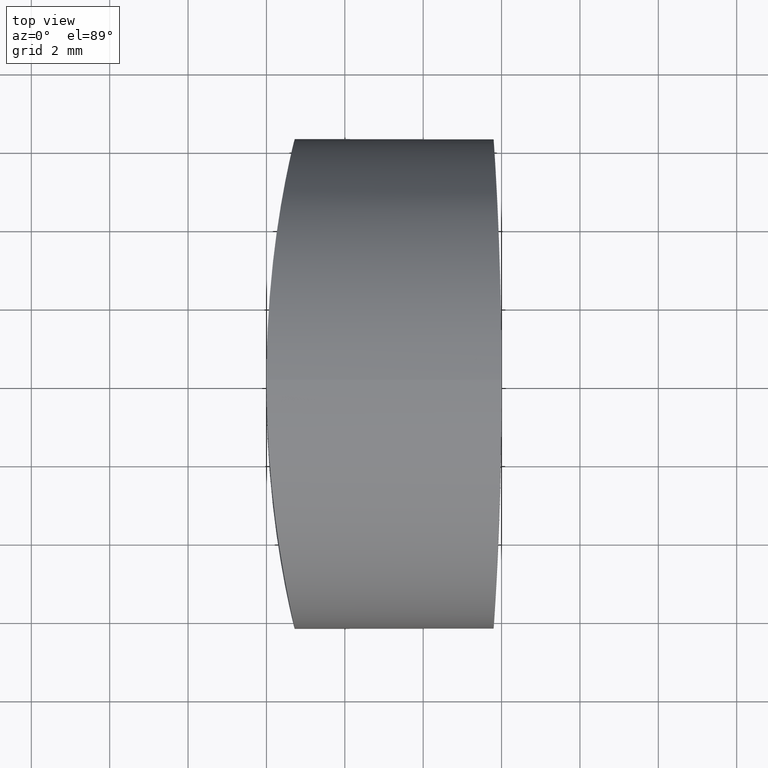
[diagram: clean part render]
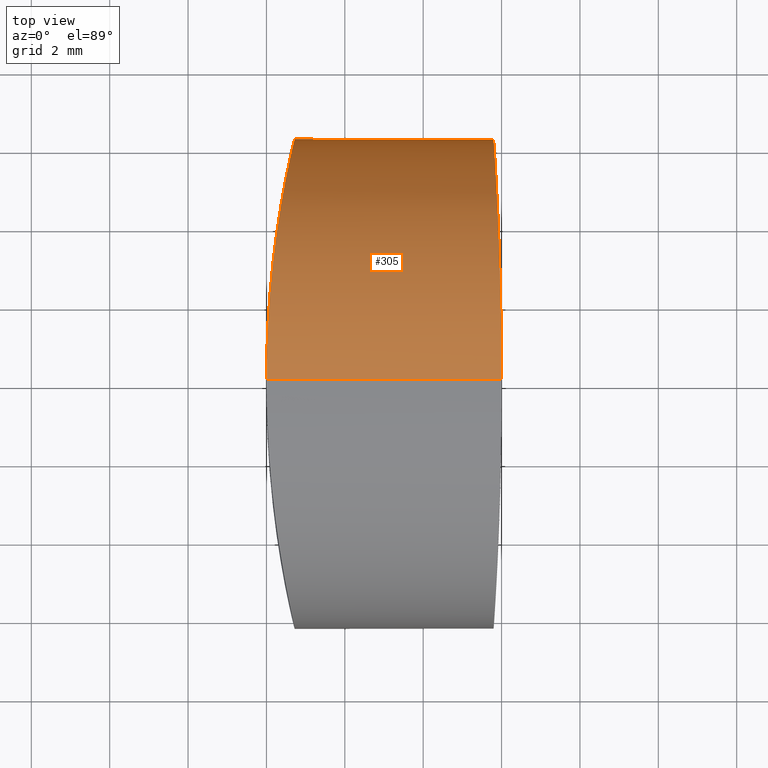
[diagram: same view with one face highlighted and labeled with its STEP entity id]
A machine part, top view. The second image highlights one B-rep face of the part: STEP entity #305.
In plain terms, the highlighted cylindrical surface (partial cylindrical patch) has radius 6.25 mm, axis along (1, -0, -0).
Its self-contained STEP definition (entity closure, byte-faithful):
#1 = CARTESIAN_POINT ( 'NONE',  ( 3.970701140584363742, 2.393867264434657471, 0.6318106251234297810 ) ) ;
#14 = CARTESIAN_POINT ( 'NONE',  ( -1.999999999999988232, -2.025794804607558316E-23, 0.1659204607558764366 ) ) ;
#17 = CARTESIAN_POINT ( 'NONE',  ( -1.859925259449356938, 2.772965657853352806, 0.8110136745057094920 ) ) ;
#22 = CARTESIAN_POINT ( 'NONE',  ( 3.997319152655782304, 0.8217832976080150509, 12.62511903696444904 ) ) ;
#24 = CARTESIAN_POINT ( 'NONE',  ( 3.847259097544624584, 5.414084262280948856, 9.545173002638325244 ) ) ;
#25 = VECTOR ( 'NONE', #74, 1000.000000000000000 ) ;
#26 = CARTESIAN_POINT ( 'NONE',  ( 3.871542897612740841, 4.969767043136539719, 10.22769198370416532 ) ) ;
#27 = CARTESIAN_POINT ( 'NONE',  ( 3.949354187978777020, 3.123140200589369808, 0.9983280171350860099 ) ) ;
#28 = CARTESIAN_POINT ( 'NONE',  ( 3.836136953617952816, 5.607516269999798908, 9.183643559558131386 ) ) ;
#30 = CARTESIAN_POINT ( 'NONE',  ( 3.911645654583979947, 4.127901318534466846, 1.705397611034966898 ) ) ;
#31 = VERTEX_POINT ( 'NONE', #247 ) ;
#45 = EDGE_CURVE ( 'NONE', #136, #145, #273, .T. ) ;
#47 = CARTESIAN_POINT ( 'NONE',  ( 4.000000000000031086, 7.654041361186688762E-16, 12.66592046075587596 ) ) ;
#49 = CARTESIAN_POINT ( 'NONE',  ( -1.862258568810049253, 2.769757839151302026, 12.03343208499295258 ) ) ;
#51 = CARTESIAN_POINT ( 'NONE',  ( 3.806684533421547556, 6.089399972585498588, 4.993538616398564223 ) ) ;
#52 = CARTESIAN_POINT ( 'NONE',  ( -1.277574694169997915, 6.250360675676211564, 6.007157946108796054 ) ) ;
#71 = CARTESIAN_POINT ( 'NONE',  ( -1.546775744305171729, 4.968328230239867693, 2.602332432678148955 ) ) ;
#72 = CARTESIAN_POINT ( 'NONE',  ( -1.287350413805169902, 6.209036227751648873, 5.592257759167049258 ) ) ;
#73 = CARTESIAN_POINT ( 'NONE',  ( -1.315050644076650066, 6.088329676846095495, 7.842938738167732460 ) ) ;
#74 = DIRECTION ( 'NONE',  ( 1.000000000000000000, -0.000000000000000000, -0.000000000000000000 ) ) ;
#75 = CARTESIAN_POINT ( 'NONE',  ( 4.000000000000034639, 0.4076888881608913828, 12.66592046075587419 ) ) ;
#76 = EDGE_CURVE ( 'NONE', #31, #79, #317, .T. ) ;
#77 = CARTESIAN_POINT ( 'NONE',  ( 3.871597177664503064, 4.968754873974420505, 2.602686793415346145 ) ) ;
#78 = CARTESIAN_POINT ( 'NONE',  ( -1.926573552974540915, 2.014189616208664990, 12.33601367040646224 ) ) ;
#79 = VERTEX_POINT ( 'NONE', #208 ) ;
#80 = CARTESIAN_POINT ( 'NONE',  ( 3.835785147991723765, 5.614895644616908044, 3.640456923618365259 ) ) ;
#81 = CARTESIAN_POINT ( 'NONE',  ( 3.817280280653655655, 5.920504197400468627, 4.402907011145934746 ) ) ;
#87 = DIRECTION ( 'NONE',  ( 1.000000000000000000, -0.000000000000000000, -0.000000000000000000 ) ) ;
#91 = EDGE_CURVE ( 'NONE', #136, #79, #204, .T. ) ;
#92 = CARTESIAN_POINT ( 'NONE',  ( -1.928290907776921692, 2.017260835010109332, 0.4861948975080956359 ) ) ;
#94 = CARTESIAN_POINT ( 'NONE',  ( -1.800127624215231981, 3.307872807059071274, 1.109156230123880427 ) ) ;
#98 = CARTESIAN_POINT ( 'NONE',  ( 3.821591588841473985, 5.850536504395219772, 4.207830710039567101 ) ) ;
#100 = CARTESIAN_POINT ( 'NONE',  ( -1.368676080480692558, 5.848457640996162610, 8.629498040734659980 ) ) ;
#101 = CARTESIAN_POINT ( 'NONE',  ( 3.796314688086376510, 6.250287374589430733, 6.824480164821547845 ) ) ;
#104 = CARTESIAN_POINT ( 'NONE',  ( 3.809242420778939930, 6.049419129845787779, 8.038811753146719141 ) ) ;
#108 = CARTESIAN_POINT ( 'NONE',  ( 3.979150040975546698, 2.010237166812398169, 0.4944972460249934532 ) ) ;
#114 = CARTESIAN_POINT ( 'NONE',  ( -6.500000000000000000, 0.000000000000000000, 6.415920460755876853 ) ) ;
#120 = CARTESIAN_POINT ( 'NONE',  ( -1.954594591572518913, 1.627095634744305741, 0.3675766573735297915 ) ) ;
#124 = VECTOR ( 'NONE', #218, 1000.000000000000000 ) ;
#128 = CARTESIAN_POINT ( 'NONE',  ( -1.594925943440980376, 4.703060275166605742, 10.55218012694327179 ) ) ;
#130 = CARTESIAN_POINT ( 'NONE',  ( 3.799022910531853370, 6.209155694579083118, 7.237889752115528985 ) ) ;
#132 = CARTESIAN_POINT ( 'NONE',  ( -6.500000000000000000, 0.000000000000000000, 0.1659204607558761313 ) ) ;
#133 = CARTESIAN_POINT ( 'NONE',  ( 3.830892640603730026, 5.696155008867870073, 8.996287822504227094 ) ) ;
#134 = CARTESIAN_POINT ( 'NONE',  ( -1.688785723069319733, 4.128255163304336506, 11.12600849439494510 ) ) ;
#135 = EDGE_CURVE ( 'NONE', #145, #31, #155, .T. ) ;
#136 = VERTEX_POINT ( 'NONE', #280 ) ;
#138 = CARTESIAN_POINT ( 'NONE',  ( 3.943395001072908634, 3.300634010918813033, 1.104561893720724663 ) ) ;
#145 = VERTEX_POINT ( 'NONE', #165 ) ;
#150 = CARTESIAN_POINT ( 'NONE',  ( -1.593582395901175897, 4.710914236144385647, 2.288228895437081079 ) ) ;
#154 = CARTESIAN_POINT ( 'NONE',  ( -1.952641877828973582, 1.622209684167594812, 12.45520014972431255 ) ) ;
#155 = LINE ( 'NONE', #201, #124 ) ;
#156 = CARTESIAN_POINT ( 'NONE',  ( -1.277744816031712194, 6.249634522894289113, 6.835639056565093519 ) ) ;
#157 = CARTESIAN_POINT ( 'NONE',  ( 3.809835969932800825, 6.039776630583848060, 4.795521944217352228 ) ) ;
#159 = CARTESIAN_POINT ( 'NONE',  ( -1.735384002657419877, 3.814376131947823545, 11.38399394522757468 ) ) ;
#160 = ORIENTED_EDGE ( 'NONE', *, *, #76, .T. ) ;
#165 = CARTESIAN_POINT ( 'NONE',  ( -1.999999999999989120, 2.025715918517036215E-23, 12.66592046075587596 ) ) ;
#168 = CARTESIAN_POINT ( 'NONE',  ( -1.735342481329319231, 3.814321636421825534, 1.448171787291351764 ) ) ;
#174 = CARTESIAN_POINT ( 'NONE',  ( -1.547170903636142736, 4.966227613300333132, 10.23239650385385424 ) ) ;
#175 = CARTESIAN_POINT ( 'NONE',  ( -1.353199154503197166, 5.918623497734517791, 8.434493327166119769 ) ) ;
#176 = CARTESIAN_POINT ( 'NONE',  ( 3.960419032364648206, 2.762345549659964483, 0.8057725427426374321 ) ) ;
#177 = CARTESIAN_POINT ( 'NONE',  ( 3.924879581463222245, 3.812110609171539100, 11.38543511681904619 ) ) ;
#178 = CARTESIAN_POINT ( 'NONE',  ( -1.999999999999989120, 2.025715918517036215E-23, 12.66592046075587596 ) ) ;
#180 = CARTESIAN_POINT ( 'NONE',  ( 4.000000000000032863, 1.133498457493967443E-22, 0.1659204607558763811 ) ) ;
#181 = ORIENTED_EDGE ( 'NONE', *, *, #45, .T. ) ;
#184 = ORIENTED_EDGE ( 'NONE', *, *, #91, .F. ) ;
#197 = CARTESIAN_POINT ( 'NONE',  ( -1.820847519368841816, 3.133420498061239012, 1.004266868320667028 ) ) ;
#200 = CARTESIAN_POINT ( 'NONE',  ( 3.979642841157838173, 2.012801628194695436, 12.34709159796433120 ) ) ;
#201 = CARTESIAN_POINT ( 'NONE',  ( -6.500000000000000000, 7.654042494670955634E-16, 12.66592046075587596 ) ) ;
#202 = CARTESIAN_POINT ( 'NONE',  ( 3.943262140410059846, 3.304410289334033024, 11.72485759007748740 ) ) ;
#204 = LINE ( 'NONE', #132, #25 ) ;
#205 = CARTESIAN_POINT ( 'NONE',  ( -1.911696865473067941, 2.206080125144447290, 12.26716685066609536 ) ) ;
#206 = CARTESIAN_POINT ( 'NONE',  ( -1.418644193847633961, 5.616579042898385055, 3.644018781763239456 ) ) ;
#208 = CARTESIAN_POINT ( 'NONE',  ( 4.000000000000032863, 1.133498457493967443E-22, 0.1659204607558763811 ) ) ;
#209 = CARTESIAN_POINT ( 'NONE',  ( -1.419513095440953832, 5.612452302191519138, 9.196281782611283262 ) ) ;
#210 = EDGE_LOOP ( 'NONE', ( #181, #282, #160, #184 ) ) ;
#211 = CARTESIAN_POINT ( 'NONE',  ( 3.989734169128582586, 1.418315561059886765, 0.3255049212500812916 ) ) ;
#216 = DIRECTION ( 'NONE',  ( 0.000000000000000000, 0.000000000000000000, -1.000000000000000000 ) ) ;
#217 = FACE_OUTER_BOUND ( 'NONE', #210, .T. ) ;
#218 = DIRECTION ( 'NONE',  ( 1.000000000000000000, -0.000000000000000000, -0.000000000000000000 ) ) ;
#221 = CARTESIAN_POINT ( 'NONE',  ( -1.999999999999988676, 0.4090758884382472149, 0.1659204607558747990 ) ) ;
#231 = CARTESIAN_POINT ( 'NONE',  ( -1.963877432318550387, 1.420924309365094507, 12.50573313448479595 ) ) ;
#232 = CARTESIAN_POINT ( 'NONE',  ( -1.822657548445254516, 3.131364917687820881, 11.84047326954647694 ) ) ;
#233 = CARTESIAN_POINT ( 'NONE',  ( 3.885084532779451205, 4.704668490741449993, 2.281348027537908330 ) ) ;
#234 = CARTESIAN_POINT ( 'NONE',  ( 3.816722461102150188, 5.931303527217370863, 8.428393788411538523 ) ) ;
#235 = CARTESIAN_POINT ( 'NONE',  ( 3.986547992926378292, 1.618919533692513069, 0.3757709677204121301 ) ) ;
#236 = CARTESIAN_POINT ( 'NONE',  ( -1.459544857805015194, 5.420174023815212294, 9.554490142347527026 ) ) ;
#243 = CYLINDRICAL_SURFACE ( 'NONE', #303, 6.250000000000000000 ) ;
#247 = CARTESIAN_POINT ( 'NONE',  ( 4.000000000000031086, 7.654041361186688762E-16, 12.66592046075587596 ) ) ;
#256 = CARTESIAN_POINT ( 'NONE',  ( 3.911666462844916481, 4.127652124117149768, 11.12709587291777424 ) ) ;
#257 = CARTESIAN_POINT ( 'NONE',  ( 3.853150459492664215, 5.309084431220586708, 9.720091181787495316 ) ) ;
#258 = CARTESIAN_POINT ( 'NONE',  ( -1.999999999999988676, 0.4090695231403943533, 12.66592046075587419 ) ) ;
#261 = CARTESIAN_POINT ( 'NONE',  ( 3.924847980163156613, 3.813195091562492589, 1.446926397538411013 ) ) ;
#262 = CARTESIAN_POINT ( 'NONE',  ( 3.960269817474967535, 2.767558549271831314, 12.02352447444030759 ) ) ;
#273 = B_SPLINE_CURVE_WITH_KNOTS ( 'NONE', 3,
 ( #14, #221, #294, #120, #92, #325, #17, #197, #94, #168, #299, #150, #71, #276, #206, #308, #336, #72, #52, #156, #301, #73, #277, #175, #100, #209, #236, #174, #128, #134, #159, #232, #49, #205, #78, #154, #231, #337, #258, #178 ),
 .UNSPECIFIED., .F., .F.,
 ( 4, 2, 2, 2, 2, 2, 2, 2, 2, 2, 2, 2, 2, 2, 2, 2, 2, 2, 2, 4 ),
 ( 0.02940407889636107233, 0.03062902388804982987, 0.03185396887973859087, 0.03246644137558296617, 0.03307891387142734840, 0.03430385886311610594, 0.03552880385480487041, 0.03675374884649362794, 0.03797869383818239242, 0.03920363882987114995, 0.04042858382155990749, 0.04104105631740428278, 0.04165352881324866502, 0.04287847380493740868, 0.04410341879662616621, 0.04532836378831491680, 0.04655330878000366740, 0.04716578127584804270, 0.04777825377169242493, 0.04900319876338117553 ),
 .UNSPECIFIED. ) ;
#276 = CARTESIAN_POINT ( 'NONE',  ( -1.459481361792043907, 5.420449187366095600, 3.278011976035771546 ) ) ;
#277 = CARTESIAN_POINT ( 'NONE',  ( -1.326407860301003439, 6.038451125353795135, 8.041296888435431001 ) ) ;
#278 = CARTESIAN_POINT ( 'NONE',  ( 3.987112049802486791, 1.623247554669996706, 12.46526274924277544 ) ) ;
#279 = CARTESIAN_POINT ( 'NONE',  ( 3.799039017625655212, 6.208904617575132789, 5.592602782711422194 ) ) ;
#280 = CARTESIAN_POINT ( 'NONE',  ( -1.999999999999988232, -2.025794804607558316E-23, 0.1659204607558764366 ) ) ;
#281 = CARTESIAN_POINT ( 'NONE',  ( 3.965504197679731835, 2.580272594666831676, 12.11211293472836559 ) ) ;
#282 = ORIENTED_EDGE ( 'NONE', *, *, #135, .T. ) ;
#294 = CARTESIAN_POINT ( 'NONE',  ( -1.990530616496565930, 0.8246926825531656347, 0.2070731484231863595 ) ) ;
#299 = CARTESIAN_POINT ( 'NONE',  ( -1.688332098000617121, 4.131400204899446926, 1.708258307874834125 ) ) ;
#301 = CARTESIAN_POINT ( 'NONE',  ( -1.287473228372622902, 6.208504599585721095, 7.242678169551171941 ) ) ;
#303 = AXIS2_PLACEMENT_3D ( 'NONE', #114, #87, #216 ) ;
#305 = ADVANCED_FACE ( 'NONE', ( #217 ), #243, .T. ) ;
#306 = CARTESIAN_POINT ( 'NONE',  ( 4.000000000000034639, 0.4076884619637705098, 0.1659204607558753819 ) ) ;
#307 = CARTESIAN_POINT ( 'NONE',  ( 3.796352385796852857, 6.249709566056590226, 5.998615252689856625 ) ) ;
#308 = CARTESIAN_POINT ( 'NONE',  ( -1.351173038985984398, 5.929618670669481340, 4.398738891443029431 ) ) ;
#310 = CARTESIAN_POINT ( 'NONE',  ( 3.884780156405191587, 4.711073136301743958, 10.54368931648213703 ) ) ;
#313 = CARTESIAN_POINT ( 'NONE',  ( 3.997402908488032924, 0.8132492780566611401, 0.2054255118702897898 ) ) ;
#317 = B_SPLINE_CURVE_WITH_KNOTS ( 'NONE', 3,
 ( #47, #75, #22, #278, #200, #281, #262, #334, #202, #177, #256, #310, #26, #257, #24, #28, #133, #234, #104, #130, #101, #307, #279, #51, #157, #81, #98, #80, #339, #77, #233, #30, #261, #138, #27, #176, #1, #108, #235, #211, #313, #306, #180 ),
 .UNSPECIFIED., .F., .F.,
 ( 4, 2, 2, 2, 2, 2, 2, 2, 2, 2, 2, 2, 2, 2, 2, 2, 2, 2, 1, 2, 2, 4 ),
 ( 0.009774992116915404150, 0.01099632855134807970, 0.01221766498578075524, 0.01282833320299709215, 0.01343900142021343079, 0.01466033785464610634, 0.01588167428907878362, 0.01649234250629512399, 0.01710301072351146437, 0.01832434715794415206, 0.01954568359237683628, 0.02076702002680951703, 0.02137768824402586088, 0.02198835646124220472, 0.02320969289567489241, 0.02443102933010757316, 0.02565236576454026085, 0.02626303398175660123, 0.02687370219897294507, 0.02748437041618928545, 0.02809503863340562929, 0.02931637506783831004 ),
 .UNSPECIFIED. ) ;
#325 = CARTESIAN_POINT ( 'NONE',  ( -1.878366243185419560, 2.585912103451887489, 0.7222678346997325471 ) ) ;
#334 = CARTESIAN_POINT ( 'NONE',  ( 3.949151118416785788, 3.129403045544610240, 11.82992449441464267 ) ) ;
#336 = CARTESIAN_POINT ( 'NONE',  ( -1.324247643659665297, 6.048255191963229471, 4.788296346775369194 ) ) ;
#337 = CARTESIAN_POINT ( 'NONE',  ( -1.990843310886561746, 0.8154500683987703225, 12.62614737787931674 ) ) ;
#339 = CARTESIAN_POINT ( 'NONE',  ( 3.846992002046032866, 5.422710996700530472, 3.281677099807811526 ) ) ;